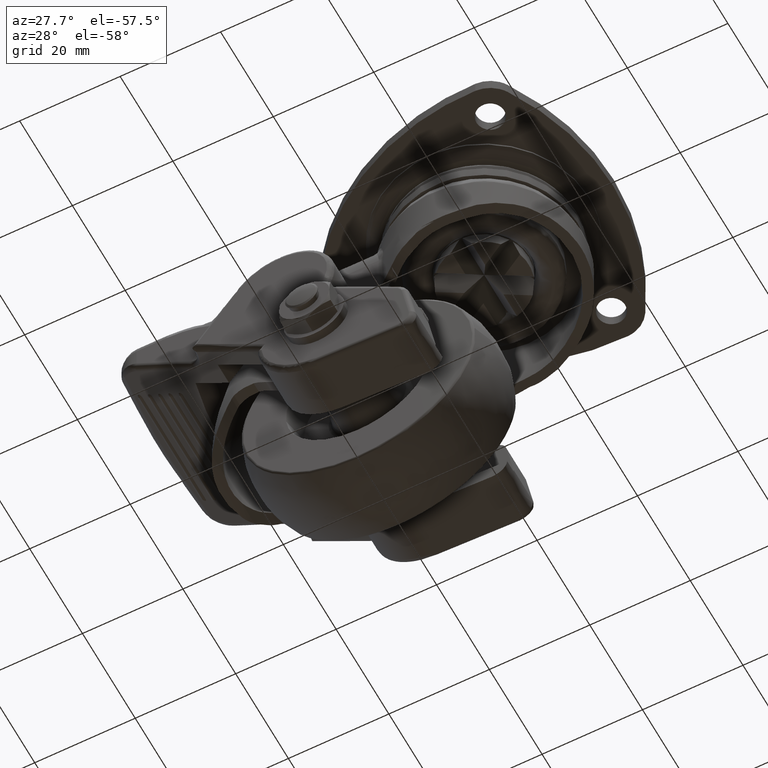
[diagram: clean part render]
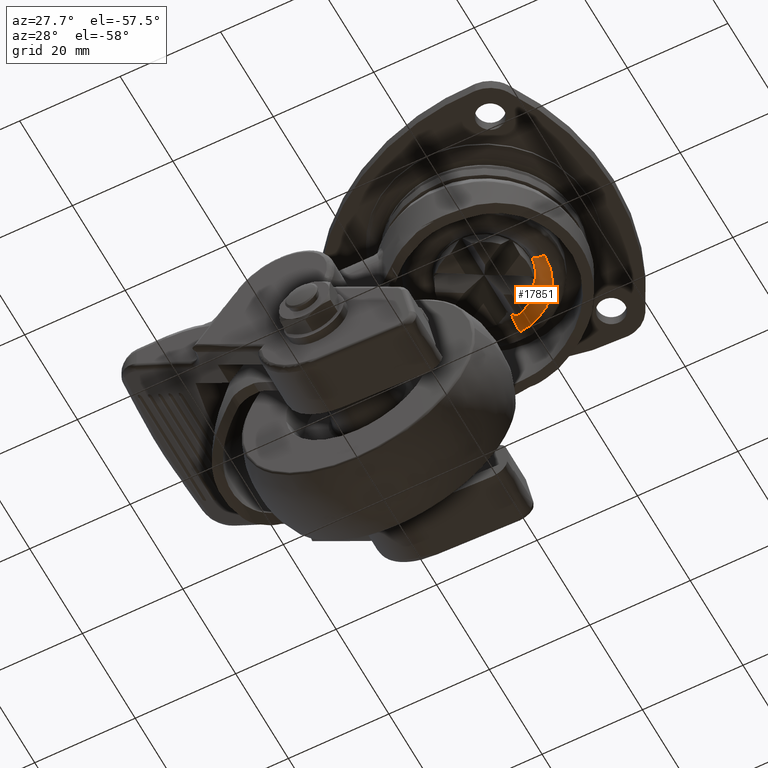
[diagram: same view with one face highlighted and labeled with its STEP entity id]
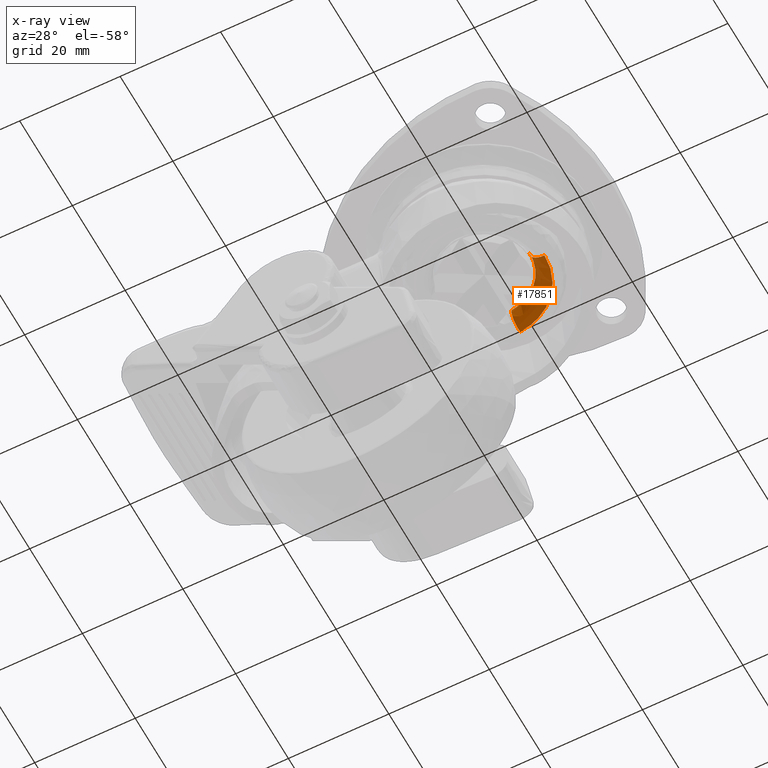
[diagram: x-ray of the same camera — body ghosted, the highlighted face saturated]
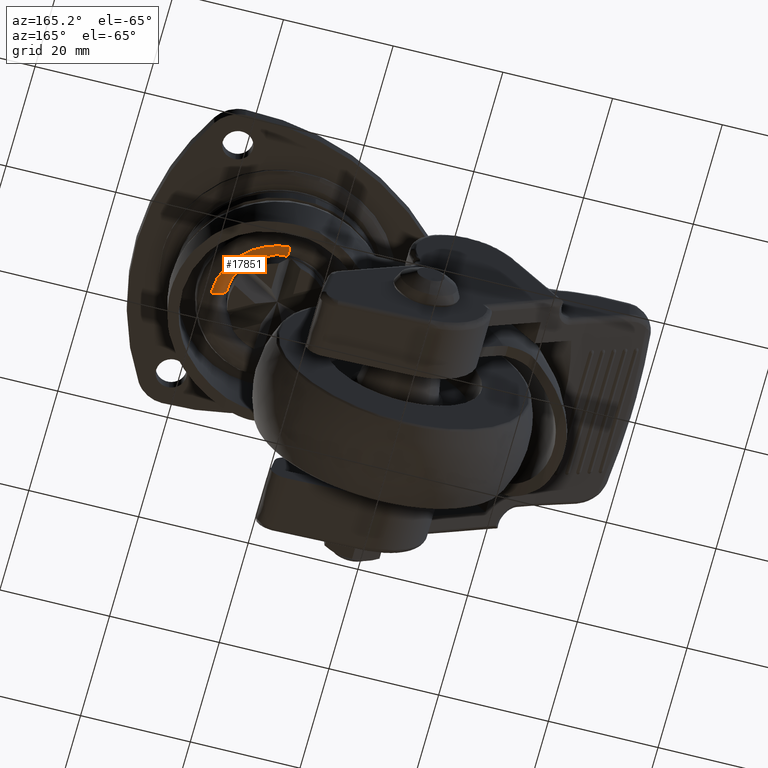
[diagram: same view with one face highlighted and labeled with its STEP entity id]
A machine part, auxiliary view. The second image highlights one B-rep face of the part: STEP entity #17851.
The next image is the same camera in x-ray: the body ghosted, the highlighted face saturated — about 0% of this face is hidden behind the body in this view.
A second angle (auxiliary view) of the same face is appended — the face is thin or edge-on in the first view.
In plain terms, the highlighted face is a freeform B-spline surface patch.
Its self-contained STEP definition (entity closure, byte-faithful):
#15372=CARTESIAN_POINT('',(0.630674988849290,9.022090693729968,-12.260379159575310));
#15373=VERTEX_POINT('',#15372);
#15389=CARTESIAN_POINT('',(9.044106999999999,0.0,-12.260379159228300));
#15390=VERTEX_POINT('',#15389);
#15391=CARTESIAN_POINT('',(0.630674988849290,9.022090693729968,-12.260379159575312));
#15392=CARTESIAN_POINT('',(9.044107000000000,8.433963027853819,-12.260379159228300));
#15393=CARTESIAN_POINT('',(9.044106999999999,0.0,-12.260379159228300));
#15401=(BOUNDED_CURVE()B_SPLINE_CURVE(2,(#15391,#15392,#15393),.UNSPECIFIED.,.F.,.U.)B_SPLINE_CURVE_WITH_KNOTS((3,3),(0.762166313470320,1.0),.UNSPECIFIED.)CURVE()GEOMETRIC_REPRESENTATION_ITEM()RATIONAL_B_SPLINE_CURVE((0.972879876375530,0.721360504040210,1.0))REPRESENTATION_ITEM(''));
#15402=EDGE_CURVE('',#15373,#15390,#15401,.T.);
#15404=CARTESIAN_POINT('',(9.043392915330731,-0.113648609296019,-12.260379159584749));
#15405=VERTEX_POINT('',#15404);
#15406=CARTESIAN_POINT('',(9.044106999999999,0.0,-12.260379159228300));
#15407=CARTESIAN_POINT('',(9.044106999999999,-0.056826548053039,-12.260379159228304));
#15408=CARTESIAN_POINT('',(9.043392915330731,-0.113648609296019,-12.260379159584746));
#15416=(BOUNDED_CURVE()B_SPLINE_CURVE(2,(#15406,#15407,#15408),.UNSPECIFIED.,.F.,.U.)B_SPLINE_CURVE_WITH_KNOTS((3,3),(0.0,0.002215704079233),.UNSPECIFIED.)CURVE()GEOMETRIC_REPRESENTATION_ITEM()RATIONAL_B_SPLINE_CURVE((1.0,0.997404141201181,0.994854295641800))REPRESENTATION_ITEM(''));
#15417=EDGE_CURVE('',#15390,#15405,#15416,.T.);
#17735=CARTESIAN_POINT('',(12.043156047797121,-0.151346729036417,-15.260379159228300));
#17736=VERTEX_POINT('',#17735);
#17737=CARTESIAN_POINT('',(9.043392915330731,-0.113648609296019,-12.260379159584746));
#17738=CARTESIAN_POINT('',(9.043392916043876,-0.113648609280267,-15.260379158940477));
#17739=CARTESIAN_POINT('',(12.043156047797128,-0.151346729036417,-15.260379159228298));
#17747=(BOUNDED_CURVE()B_SPLINE_CURVE(2,(#17737,#17738,#17739),.UNSPECIFIED.,.F.,.U.)B_SPLINE_CURVE_WITH_KNOTS((3,3),(-1.725134643038125,-0.274865356816571),.UNSPECIFIED.)CURVE()GEOMETRIC_REPRESENTATION_ITEM()RATIONAL_B_SPLINE_CURVE((0.883342149566112,0.624617224188606,0.883342149617956))REPRESENTATION_ITEM(''));
#17748=EDGE_CURVE('',#15405,#17736,#17747,.T.);
#17767=CARTESIAN_POINT('',(0.839874743766094,12.014787713923880,-15.260379159228300));
#17768=VERTEX_POINT('',#17767);
#17784=CARTESIAN_POINT('',(0.630674988849290,9.022090693729968,-12.260379159575315));
#17785=CARTESIAN_POINT('',(0.630674988754614,9.022090694432308,-15.260379156606545));
#17786=CARTESIAN_POINT('',(0.839874743766094,12.014787713923873,-15.260379159228302));
#17794=(BOUNDED_CURVE()B_SPLINE_CURVE(2,(#17784,#17785,#17786),.UNSPECIFIED.,.F.,.U.)B_SPLINE_CURVE_WITH_KNOTS((3,3),(-1.725134643044574,-0.274865357614384),.UNSPECIFIED.)CURVE()GEOMETRIC_REPRESENTATION_ITEM()RATIONAL_B_SPLINE_CURVE((0.863472075289961,0.610566960058914,0.863472075060136))REPRESENTATION_ITEM(''));
#17795=EDGE_CURVE('',#15373,#17768,#17794,.T.);
#17800=CARTESIAN_POINT('',(9.050654271654018,-0.113739862969479,-12.051767456431833));
#17801=CARTESIAN_POINT('',(9.158064902503091,8.433276631819650,-12.051767456431834));
#17802=CARTESIAN_POINT('',(0.631181386676522,9.029334945528966,-12.051767456431833));
#17803=CARTESIAN_POINT('',(8.810799377325475,-0.110725598807502,-15.492991245580185));
#17804=CARTESIAN_POINT('',(8.915363477444416,8.209783101445430,-15.492991245580191));
#17805=CARTESIAN_POINT('',(0.614454204280704,8.790045042919404,-15.492991245580184));
#17806=CARTESIAN_POINT('',(12.251751448384187,-0.153968154019507,-15.253117217770180));
#17807=CARTESIAN_POINT('',(12.397151804267688,11.416015471071423,-15.253117217770178));
#17808=CARTESIAN_POINT('',(0.854421927553530,12.222891757483261,-15.253117217770178));
#17816=(BOUNDED_SURFACE()B_SPLINE_SURFACE(2,2,((#17800,#17803,#17806),(#17801,#17804,#17807),(#17802,#17805,#17808)),.UNSPECIFIED.,.F.,.F.,.U.)B_SPLINE_SURFACE_WITH_KNOTS((3,3),(3,3),(0.0,19.483581990277770),(0.0,5.467122848107706),.UNSPECIFIED.)GEOMETRIC_REPRESENTATION_ITEM()RATIONAL_B_SPLINE_SURFACE(((0.910479847131206,0.597479514953821,0.910479870522433),(0.654473408963809,0.429481724576293,0.654473425777949),(0.889999332077814,0.584039691723619,0.889999354942874)))REPRESENTATION_ITEM('')SURFACE());
#17817=ORIENTED_EDGE('',*,*,#15402,.F.);
#17818=ORIENTED_EDGE('',*,*,#17795,.T.);
#17819=CARTESIAN_POINT('',(12.044107000000000,0.0,-15.260379159228300));
#17820=VERTEX_POINT('',#17819);
#17821=CARTESIAN_POINT('',(12.044107000000000,0.0,-15.260379159228300));
#17822=CARTESIAN_POINT('',(12.044107000000002,11.231573569125366,-15.260379159228304));
#17823=CARTESIAN_POINT('',(0.839874743766094,12.014787713923877,-15.260379159228297));
#17831=(BOUNDED_CURVE()B_SPLINE_CURVE(2,(#17821,#17822,#17823),.UNSPECIFIED.,.F.,.U.)B_SPLINE_CURVE_WITH_KNOTS((3,3),(0.0,0.237833686522968),.UNSPECIFIED.)CURVE()GEOMETRIC_REPRESENTATION_ITEM()RATIONAL_B_SPLINE_CURVE((1.0,0.721360504048073,0.972879876361334))REPRESENTATION_ITEM(''));
#17832=EDGE_CURVE('',#17820,#17768,#17831,.T.);
#17833=ORIENTED_EDGE('',*,*,#17832,.F.);
#17834=CARTESIAN_POINT('',(12.043156047797122,-0.151346729036417,-15.260379159228302));
#17835=CARTESIAN_POINT('',(12.044106999999999,-0.075676352120868,-15.260379159228306));
#17836=CARTESIAN_POINT('',(12.044107000000000,0.0,-15.260379159228300));
#17844=(BOUNDED_CURVE()B_SPLINE_CURVE(2,(#17834,#17835,#17836),.UNSPECIFIED.,.F.,.U.)B_SPLINE_CURVE_WITH_KNOTS((3,3),(0.997784295918315,1.0),.UNSPECIFIED.)CURVE()GEOMETRIC_REPRESENTATION_ITEM()RATIONAL_B_SPLINE_CURVE((0.994854295636157,0.997404141198309,1.0))REPRESENTATION_ITEM(''));
#17845=EDGE_CURVE('',#17736,#17820,#17844,.T.);
#17846=ORIENTED_EDGE('',*,*,#17845,.F.);
#17847=ORIENTED_EDGE('',*,*,#17748,.F.);
#17848=ORIENTED_EDGE('',*,*,#15417,.F.);
#17849=EDGE_LOOP('',(#17817,#17818,#17833,#17846,#17847,#17848));
#17850=FACE_OUTER_BOUND('',#17849,.T.);
#17851=ADVANCED_FACE('',(#17850),#17816,.T.);